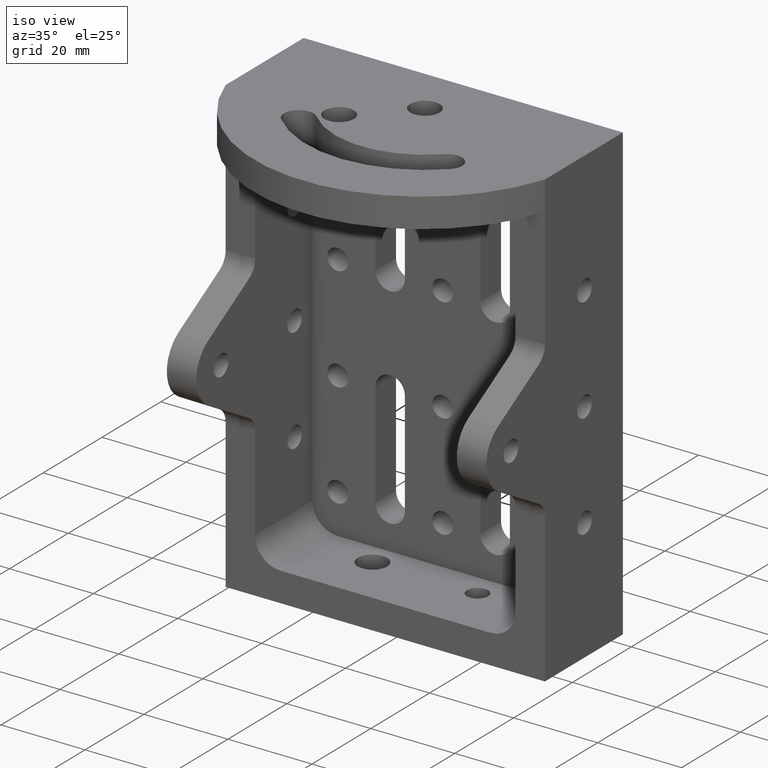
[diagram: clean part render]
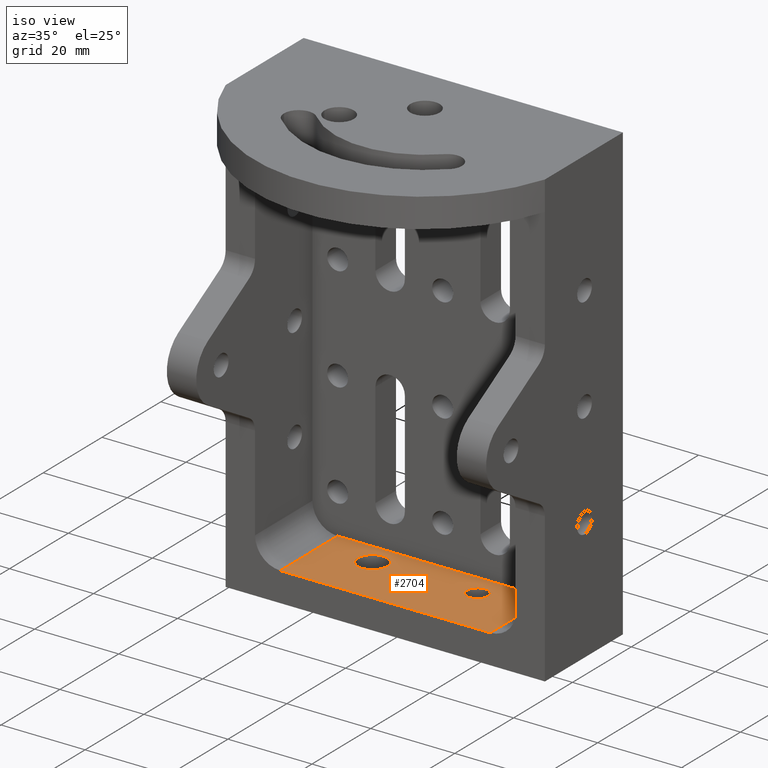
[diagram: same view with one face highlighted and labeled with its STEP entity id]
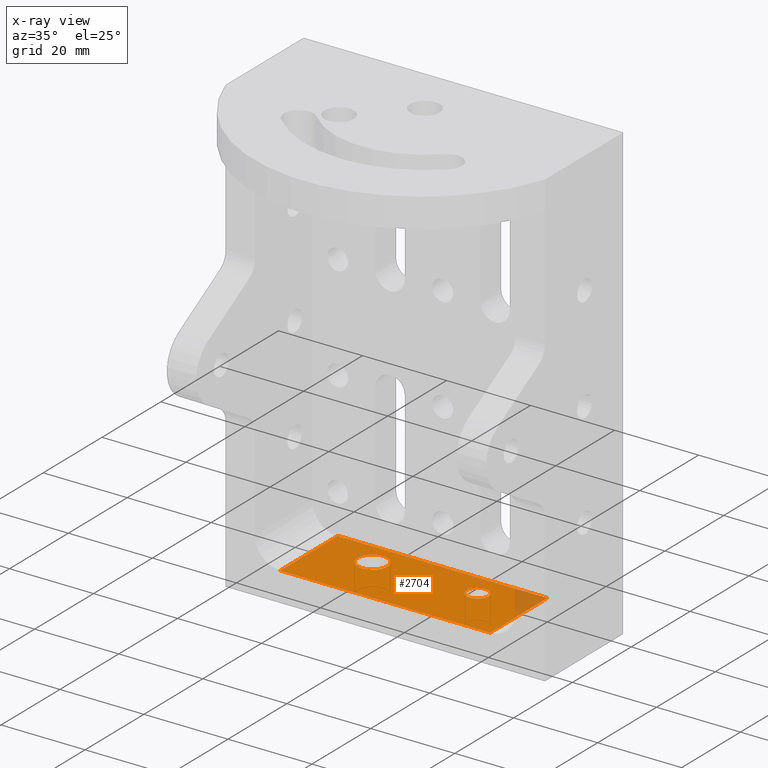
[diagram: x-ray of the same camera — body ghosted, the highlighted face saturated]
A machine part, iso view. The second image highlights one B-rep face of the part: STEP entity #2704.
The next image is the same camera in x-ray: the body ghosted, the highlighted face saturated — about 4% of this face is hidden behind the body in this view.
In plain terms, the highlighted planar face has unit normal (0, 0, -1).
Its self-contained STEP definition (entity closure, byte-faithful):
#1 = CARTESIAN_POINT ( 'NONE',  ( -24.99999999999993600, -26.50332882212206100, -46.99999999999998600 ) ) ;
#38 = DIRECTION ( 'NONE',  ( -1.000000000000000000, 0.0000000000000000000, 0.0000000000000000000 ) ) ;
#61 = CARTESIAN_POINT ( 'NONE',  ( 12.49999999999999800, -12.99999999999993400, -46.99999999999998600 ) ) ;
#201 = VERTEX_POINT ( 'NONE', #342 ) ;
#325 = PLANE ( 'NONE',  #2160 ) ;
#342 = CARTESIAN_POINT ( 'NONE',  ( -24.99999999999986900, -6.999999999999434200, -46.99999999999998600 ) ) ;
#366 = EDGE_CURVE ( 'NONE', #2888, #460, #1548, .T. ) ;
#452 = AXIS2_PLACEMENT_3D ( 'NONE', #1192, #1745, #2036 ) ;
#459 = CARTESIAN_POINT ( 'NONE',  ( 24.99999999999990400, -6.999999999999434200, -46.99999999999998600 ) ) ;
#460 = VERTEX_POINT ( 'NONE', #459 ) ;
#481 = FACE_BOUND ( 'NONE', #2434, .T. ) ;
#503 = ORIENTED_EDGE ( 'NONE', *, *, #2905, .T. ) ;
#752 = VECTOR ( 'NONE', #2491, 1000.000000000000000 ) ;
#792 = CIRCLE ( 'NONE', #2199, 3.500000000000012000 ) ;
#805 = DIRECTION ( 'NONE',  ( 0.0000000000000000000, 1.476360405086627500E-016, -1.000000000000000000 ) ) ;
#850 = CARTESIAN_POINT ( 'NONE',  ( -31.00000000000000000, -6.999999999999434200, -46.99999999999998600 ) ) ;
#876 = VECTOR ( 'NONE', #38, 1000.000000000000000 ) ;
#957 = ORIENTED_EDGE ( 'NONE', *, *, #366, .T. ) ;
#1013 = LINE ( 'NONE', #2596, #876 ) ;
#1035 = EDGE_LOOP ( 'NONE', ( #1988, #503, #2394, #957 ) ) ;
#1192 = CARTESIAN_POINT ( 'NONE',  ( -12.50000000000000200, -12.99999999999995200, -46.99999999999998600 ) ) ;
#1281 = CARTESIAN_POINT ( 'NONE',  ( 14.99999999999999800, -12.99999999999993400, -46.99999999999998600 ) ) ;
#1295 = FACE_OUTER_BOUND ( 'NONE', #1035, .T. ) ;
#1310 = CARTESIAN_POINT ( 'NONE',  ( -31.00000000000000000, -6.999999999999434200, -46.99999999999998600 ) ) ;
#1443 = DIRECTION ( 'NONE',  ( 0.0000000000000000000, 1.000000000000000000, 0.0000000000000000000 ) ) ;
#1522 = CARTESIAN_POINT ( 'NONE',  ( 24.99999999999994700, -26.50332882212206100, -46.99999999999998600 ) ) ;
#1548 = LINE ( 'NONE', #3020, #2902 ) ;
#1738 = CIRCLE ( 'NONE', #452, 3.500000000000012000 ) ;
#1743 = DIRECTION ( 'NONE',  ( 0.0000000000000000000, 1.476360405086627500E-016, -1.000000000000000000 ) ) ;
#1745 = DIRECTION ( 'NONE',  ( 0.0000000000000000000, 1.476360405086627500E-016, -1.000000000000000000 ) ) ;
#1813 = VERTEX_POINT ( 'NONE', #3113 ) ;
#1841 = VERTEX_POINT ( 'NONE', #1 ) ;
#1881 = FACE_BOUND ( 'NONE', #1948, .T. ) ;
#1897 = CARTESIAN_POINT ( 'NONE',  ( -24.99999999999993600, -26.50332882212208200, -46.99999999999998600 ) ) ;
#1933 = EDGE_CURVE ( 'NONE', #2182, #2833, #1738, .T. ) ;
#1948 = EDGE_LOOP ( 'NONE', ( #2385, #1996 ) ) ;
#1988 = ORIENTED_EDGE ( 'NONE', *, *, #2343, .F. ) ;
#1996 = ORIENTED_EDGE ( 'NONE', *, *, #3183, .T. ) ;
#2036 = DIRECTION ( 'NONE',  ( 0.0000000000000000000, 1.000000000000000000, 0.0000000000000000000 ) ) ;
#2037 = DIRECTION ( 'NONE',  ( 0.0000000000000000000, 1.000000000000000000, 1.476360405086627500E-016 ) ) ;
#2160 = AXIS2_PLACEMENT_3D ( 'NONE', #850, #2633, #2037 ) ;
#2182 = VERTEX_POINT ( 'NONE', #3434 ) ;
#2199 = AXIS2_PLACEMENT_3D ( 'NONE', #3122, #805, #3166 ) ;
#2343 = EDGE_CURVE ( 'NONE', #201, #460, #2401, .T. ) ;
#2385 = ORIENTED_EDGE ( 'NONE', *, *, #3003, .T. ) ;
#2394 = ORIENTED_EDGE ( 'NONE', *, *, #3140, .F. ) ;
#2401 = LINE ( 'NONE', #1310, #3172 ) ;
#2434 = EDGE_LOOP ( 'NONE', ( #3038, #2611 ) ) ;
#2467 = LINE ( 'NONE', #1897, #752 ) ;
#2491 = DIRECTION ( 'NONE',  ( -3.367670801987544500E-015, -1.000000000000000000, -1.476360405086627500E-016 ) ) ;
#2580 = DIRECTION ( 'NONE',  ( 0.0000000000000000000, 1.476360405086627500E-016, -1.000000000000000000 ) ) ;
#2582 = AXIS2_PLACEMENT_3D ( 'NONE', #61, #1743, #2641 ) ;
#2596 = CARTESIAN_POINT ( 'NONE',  ( -38.00000000000000000, -26.50332882212206100, -46.99999999999998600 ) ) ;
#2611 = ORIENTED_EDGE ( 'NONE', *, *, #3034, .T. ) ;
#2633 = DIRECTION ( 'NONE',  ( 0.0000000000000000000, 1.476360405086627500E-016, -1.000000000000000000 ) ) ;
#2641 = DIRECTION ( 'NONE',  ( 0.0000000000000000000, 1.000000000000000000, 0.0000000000000000000 ) ) ;
#2704 = ADVANCED_FACE ( 'NONE', ( #1881, #481, #1295 ), #325, .F. ) ;
#2784 = CIRCLE ( 'NONE', #3536, 2.499999999999998700 ) ;
#2833 = VERTEX_POINT ( 'NONE', #2929 ) ;
#2888 = VERTEX_POINT ( 'NONE', #1522 ) ;
#2902 = VECTOR ( 'NONE', #2996, 1000.000000000000000 ) ;
#2905 = EDGE_CURVE ( 'NONE', #201, #1841, #2467, .T. ) ;
#2929 = CARTESIAN_POINT ( 'NONE',  ( -8.999999999999991100, -12.99999999999995200, -46.99999999999998600 ) ) ;
#2996 = DIRECTION ( 'NONE',  ( -2.405479144276812900E-015, 1.000000000000000000, 1.476360405086627500E-016 ) ) ;
#3003 = EDGE_CURVE ( 'NONE', #1813, #3292, #2784, .T. ) ;
#3020 = CARTESIAN_POINT ( 'NONE',  ( 24.99999999999990400, -6.999999999999449300, -46.99999999999998600 ) ) ;
#3034 = EDGE_CURVE ( 'NONE', #2833, #2182, #792, .T. ) ;
#3038 = ORIENTED_EDGE ( 'NONE', *, *, #1933, .T. ) ;
#3052 = DIRECTION ( 'NONE',  ( 1.000000000000000000, -0.0000000000000000000, -0.0000000000000000000 ) ) ;
#3113 = CARTESIAN_POINT ( 'NONE',  ( 10.00000000000000000, -12.99999999999993400, -46.99999999999998600 ) ) ;
#3122 = CARTESIAN_POINT ( 'NONE',  ( -12.50000000000000200, -12.99999999999995200, -46.99999999999998600 ) ) ;
#3140 = EDGE_CURVE ( 'NONE', #2888, #1841, #1013, .T. ) ;
#3166 = DIRECTION ( 'NONE',  ( 0.0000000000000000000, 1.000000000000000000, 0.0000000000000000000 ) ) ;
#3172 = VECTOR ( 'NONE', #3052, 1000.000000000000000 ) ;
#3183 = EDGE_CURVE ( 'NONE', #3292, #1813, #3217, .T. ) ;
#3217 = CIRCLE ( 'NONE', #2582, 2.499999999999998700 ) ;
#3292 = VERTEX_POINT ( 'NONE', #1281 ) ;
#3434 = CARTESIAN_POINT ( 'NONE',  ( -16.00000000000001400, -12.99999999999995200, -46.99999999999998600 ) ) ;
#3536 = AXIS2_PLACEMENT_3D ( 'NONE', #3676, #2580, #1443 ) ;
#3676 = CARTESIAN_POINT ( 'NONE',  ( 12.49999999999999800, -12.99999999999993400, -46.99999999999998600 ) ) ;